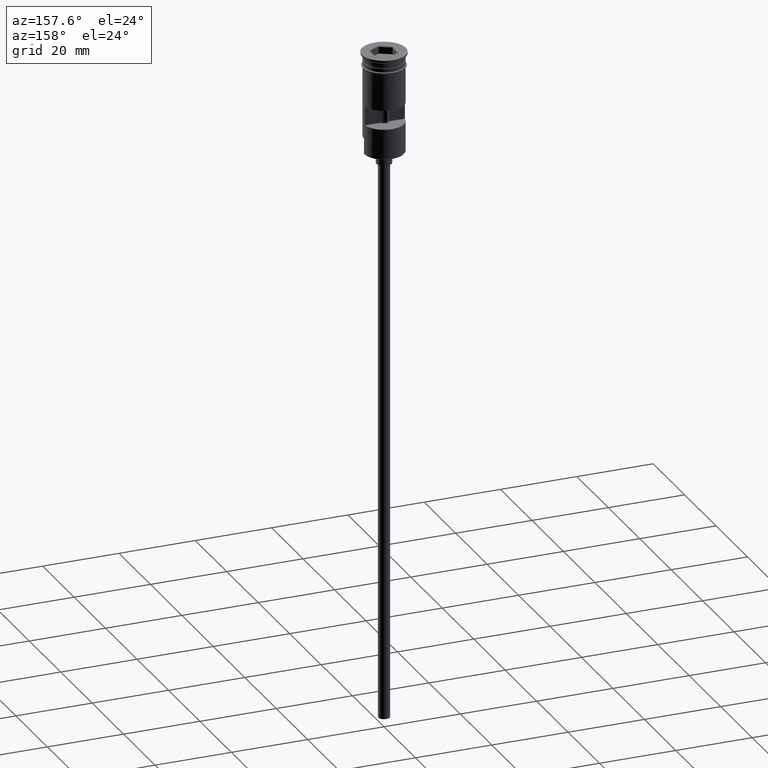
[diagram: clean part render]
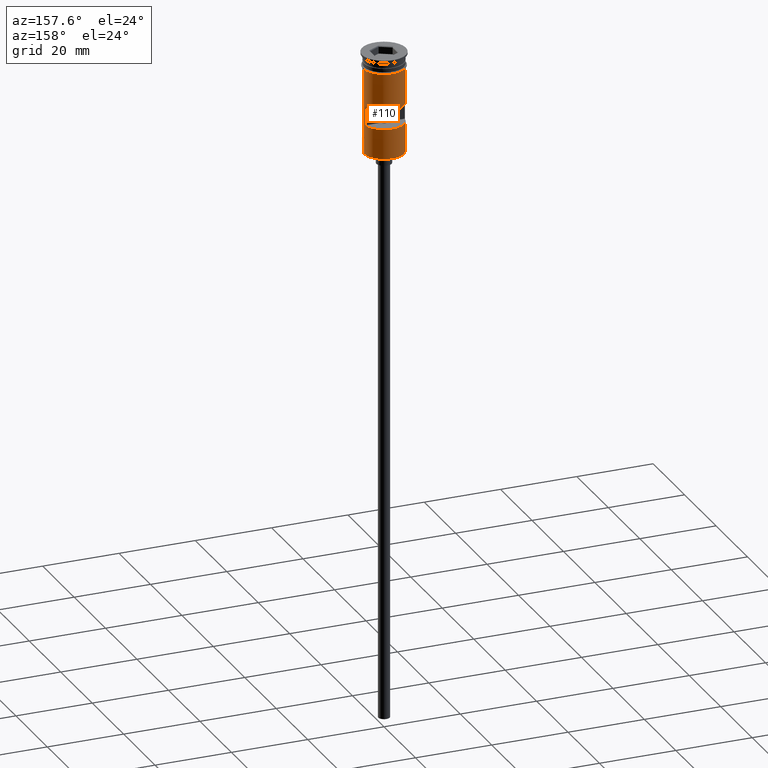
[diagram: same view with one face highlighted and labeled with its STEP entity id]
A machine part, auxiliary view. The second image highlights one B-rep face of the part: STEP entity #110.
In plain terms, the highlighted cylindrical surface (edge-blend (fillet) strip) has radius 5.25 mm, axis along (-0, -0, 1).
Its self-contained STEP definition (entity closure, byte-faithful):
#12 = ORIENTED_EDGE ( 'NONE', *, *, #914, .F. ) ;
#34 = EDGE_CURVE ( 'NONE', #759, #1288, #779, .T. ) ;
#44 = LINE ( 'NONE', #1257, #1315 ) ;
#61 = CARTESIAN_POINT ( 'NONE',  ( -5.215601595214110375, 0.5999999999999998668, -13.49999999999999822 ) ) ;
#83 = FACE_BOUND ( 'NONE', #616, .T. ) ;
#88 = CARTESIAN_POINT ( 'NONE',  ( 0.000000000000000000, 0.000000000000000000, -3.799999999999998934 ) ) ;
#89 = DIRECTION ( 'NONE',  ( -0.000000000000000000, -0.000000000000000000, 1.000000000000000000 ) ) ;
#105 = AXIS2_PLACEMENT_3D ( 'NONE', #1201, #89, #128 ) ;
#110 = ADVANCED_FACE ( 'NONE', ( #83, #577 ), #703, .T. ) ;
#128 = DIRECTION ( 'NONE',  ( 1.000000000000000000, 0.000000000000000000, 0.000000000000000000 ) ) ;
#227 = ORIENTED_EDGE ( 'NONE', *, *, #34, .F. ) ;
#230 = CARTESIAN_POINT ( 'NONE',  ( 5.215601595214109487, 0.5999999999999998668, -18.50000000000000355 ) ) ;
#257 = VERTEX_POINT ( 'NONE', #1028 ) ;
#277 = VERTEX_POINT ( 'NONE', #1153 ) ;
#286 = EDGE_CURVE ( 'NONE', #1288, #469, #44, .T. ) ;
#312 = DIRECTION ( 'NONE',  ( -0.000000000000000000, -3.730588120380232914E-16, -1.000000000000000000 ) ) ;
#315 = VERTEX_POINT ( 'NONE', #1051 ) ;
#343 = ORIENTED_EDGE ( 'NONE', *, *, #1018, .F. ) ;
#418 = ORIENTED_EDGE ( 'NONE', *, *, #1294, .F. ) ;
#469 = VERTEX_POINT ( 'NONE', #230 ) ;
#500 = ORIENTED_EDGE ( 'NONE', *, *, #1106, .T. ) ;
#540 = DIRECTION ( 'NONE',  ( 0.000000000000000000, 0.000000000000000000, -1.000000000000000000 ) ) ;
#552 = ORIENTED_EDGE ( 'NONE', *, *, #1407, .T. ) ;
#553 = LINE ( 'NONE', #1050, #978 ) ;
#572 = AXIS2_PLACEMENT_3D ( 'NONE', #800, #312, #697 ) ;
#577 = FACE_OUTER_BOUND ( 'NONE', #1095, .T. ) ;
#616 = EDGE_LOOP ( 'NONE', ( #1583, #227, #343, #788 ) ) ;
#633 = LINE ( 'NONE', #1006, #725 ) ;
#664 = CARTESIAN_POINT ( 'NONE',  ( -5.215601595214110375, 0.5999999999999998668, -18.50000000000000355 ) ) ;
#673 = CARTESIAN_POINT ( 'NONE',  ( -5.249999999999994671, 0.000000000000000000, -26.50000000000000000 ) ) ;
#675 = DIRECTION ( 'NONE',  ( -0.000000000000000000, -0.000000000000000000, 1.000000000000000000 ) ) ;
#694 = CARTESIAN_POINT ( 'NONE',  ( 5.215601595214109487, 0.5999999999999998668, -13.49999999999999822 ) ) ;
#697 = DIRECTION ( 'NONE',  ( 0.000000000000000000, -1.000000000000000000, 3.304235192336777484E-16 ) ) ;
#702 = DIRECTION ( 'NONE',  ( 1.000000000000000000, 0.000000000000000000, 0.000000000000000000 ) ) ;
#703 = CYLINDRICAL_SURFACE ( 'NONE', #105, 5.249999999999996447 ) ;
#725 = VECTOR ( 'NONE', #1475, 1000.000000000000000 ) ;
#728 = EDGE_CURVE ( 'NONE', #1299, #1380, #1162, .T. ) ;
#759 = VERTEX_POINT ( 'NONE', #61 ) ;
#768 = EDGE_CURVE ( 'NONE', #257, #315, #553, .T. ) ;
#779 = CIRCLE ( 'NONE', #572, 5.249999999999996447 ) ;
#783 = LINE ( 'NONE', #1260, #1217 ) ;
#788 = ORIENTED_EDGE ( 'NONE', *, *, #1104, .F. ) ;
#800 = CARTESIAN_POINT ( 'NONE',  ( 0.000000000000000000, 0.000000000000000000, -13.49999999999999822 ) ) ;
#808 = CARTESIAN_POINT ( 'NONE',  ( 0.000000000000000000, 0.000000000000000000, -26.30000000000000071 ) ) ;
#813 = CARTESIAN_POINT ( 'NONE',  ( -5.249999999999994671, 0.000000000000000000, -26.30000000000000071 ) ) ;
#822 = VECTOR ( 'NONE', #1562, 1000.000000000000000 ) ;
#868 = CARTESIAN_POINT ( 'NONE',  ( -5.249999999999994671, 0.000000000000000000, -22.29999999999998295 ) ) ;
#914 = EDGE_CURVE ( 'NONE', #277, #257, #783, .T. ) ;
#925 = CIRCLE ( 'NONE', #1013, 5.249999999999996447 ) ;
#934 = DIRECTION ( 'NONE',  ( -1.000000000000000000, 0.000000000000000000, 0.000000000000000000 ) ) ;
#978 = VECTOR ( 'NONE', #1540, 1000.000000000000000 ) ;
#1006 = CARTESIAN_POINT ( 'NONE',  ( -5.249999999999996447, 6.429395695523600208E-16, 0.000000000000000000 ) ) ;
#1013 = AXIS2_PLACEMENT_3D ( 'NONE', #1548, #1438, #934 ) ;
#1017 = CARTESIAN_POINT ( 'NONE',  ( -5.215601595214110375, 0.5999999999999998668, 0.000000000000000000 ) ) ;
#1018 = EDGE_CURVE ( 'NONE', #1584, #759, #1418, .T. ) ;
#1028 = CARTESIAN_POINT ( 'NONE',  ( 5.249999999999996447, 6.429395695523600208E-16, -22.29999999999998295 ) ) ;
#1050 = CARTESIAN_POINT ( 'NONE',  ( 5.249999999999996447, 0.000000000000000000, 0.000000000000000000 ) ) ;
#1051 = CARTESIAN_POINT ( 'NONE',  ( 5.249999999999999112, 0.000000000000000000, -3.799999999999998934 ) ) ;
#1060 = AXIS2_PLACEMENT_3D ( 'NONE', #808, #1324, #1560 ) ;
#1095 = EDGE_LOOP ( 'NONE', ( #1393, #552, #418, #1130, #12, #500 ) ) ;
#1104 = EDGE_CURVE ( 'NONE', #469, #1584, #925, .T. ) ;
#1106 = EDGE_CURVE ( 'NONE', #277, #1299, #1452, .T. ) ;
#1130 = ORIENTED_EDGE ( 'NONE', *, *, #768, .F. ) ;
#1150 = DIRECTION ( 'NONE',  ( -0.000000000000000000, -0.000000000000000000, 1.000000000000000000 ) ) ;
#1153 = CARTESIAN_POINT ( 'NONE',  ( 5.249999999999994671, 6.429395695523597250E-16, -26.30000000000000071 ) ) ;
#1162 = LINE ( 'NONE', #673, #822 ) ;
#1201 = CARTESIAN_POINT ( 'NONE',  ( 0.000000000000000000, 0.000000000000000000, 0.000000000000000000 ) ) ;
#1217 = VECTOR ( 'NONE', #1150, 1000.000000000000000 ) ;
#1257 = CARTESIAN_POINT ( 'NONE',  ( 5.215601595214110375, 0.5999999999999998668, 0.000000000000000000 ) ) ;
#1260 = CARTESIAN_POINT ( 'NONE',  ( 5.249999999999994671, 6.429395695523597250E-16, -26.50000000000000000 ) ) ;
#1288 = VERTEX_POINT ( 'NONE', #694 ) ;
#1294 = EDGE_CURVE ( 'NONE', #315, #1575, #1347, .T. ) ;
#1299 = VERTEX_POINT ( 'NONE', #813 ) ;
#1315 = VECTOR ( 'NONE', #540, 1000.000000000000000 ) ;
#1324 = DIRECTION ( 'NONE',  ( 0.000000000000000000, 0.000000000000000000, 1.000000000000000000 ) ) ;
#1347 = CIRCLE ( 'NONE', #1394, 5.249999999999999112 ) ;
#1380 = VERTEX_POINT ( 'NONE', #868 ) ;
#1393 = ORIENTED_EDGE ( 'NONE', *, *, #728, .T. ) ;
#1394 = AXIS2_PLACEMENT_3D ( 'NONE', #88, #675, #702 ) ;
#1407 = EDGE_CURVE ( 'NONE', #1380, #1575, #633, .T. ) ;
#1418 = LINE ( 'NONE', #1017, #1600 ) ;
#1438 = DIRECTION ( 'NONE',  ( 0.000000000000000000, 0.000000000000000000, 1.000000000000000000 ) ) ;
#1452 = CIRCLE ( 'NONE', #1060, 5.249999999999996447 ) ;
#1475 = DIRECTION ( 'NONE',  ( -0.000000000000000000, -0.000000000000000000, 1.000000000000000000 ) ) ;
#1512 = CARTESIAN_POINT ( 'NONE',  ( -5.249999999999999112, 6.429395695523603167E-16, -3.799999999999998934 ) ) ;
#1516 = DIRECTION ( 'NONE',  ( -0.000000000000000000, -0.000000000000000000, 1.000000000000000000 ) ) ;
#1540 = DIRECTION ( 'NONE',  ( -0.000000000000000000, -0.000000000000000000, 1.000000000000000000 ) ) ;
#1548 = CARTESIAN_POINT ( 'NONE',  ( 0.000000000000000000, 0.000000000000000000, -18.50000000000000355 ) ) ;
#1560 = DIRECTION ( 'NONE',  ( -1.000000000000000000, 0.000000000000000000, 0.000000000000000000 ) ) ;
#1562 = DIRECTION ( 'NONE',  ( -0.000000000000000000, -0.000000000000000000, 1.000000000000000000 ) ) ;
#1575 = VERTEX_POINT ( 'NONE', #1512 ) ;
#1583 = ORIENTED_EDGE ( 'NONE', *, *, #286, .F. ) ;
#1584 = VERTEX_POINT ( 'NONE', #664 ) ;
#1600 = VECTOR ( 'NONE', #1516, 1000.000000000000000 ) ;